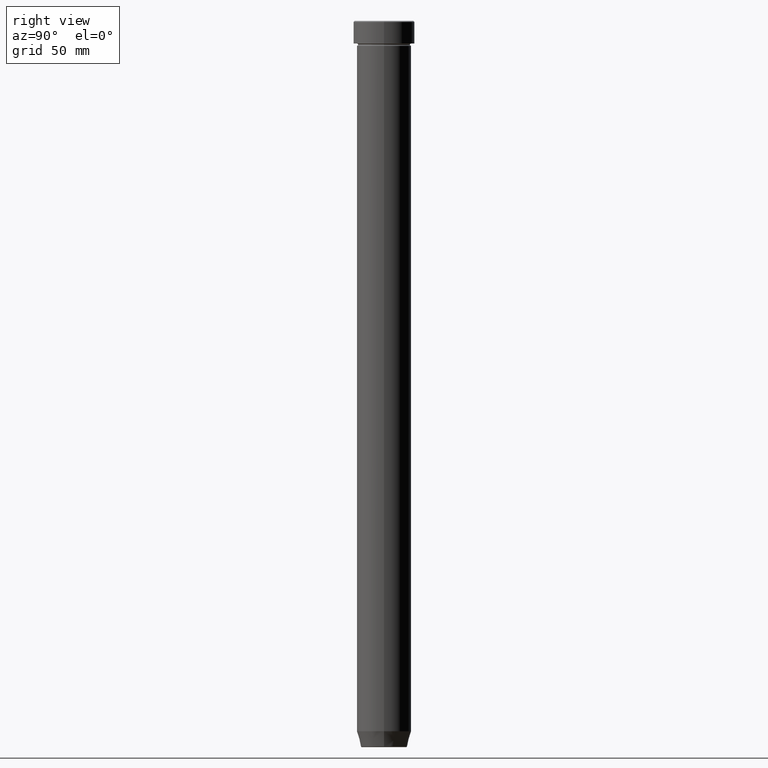
[diagram: clean part render]
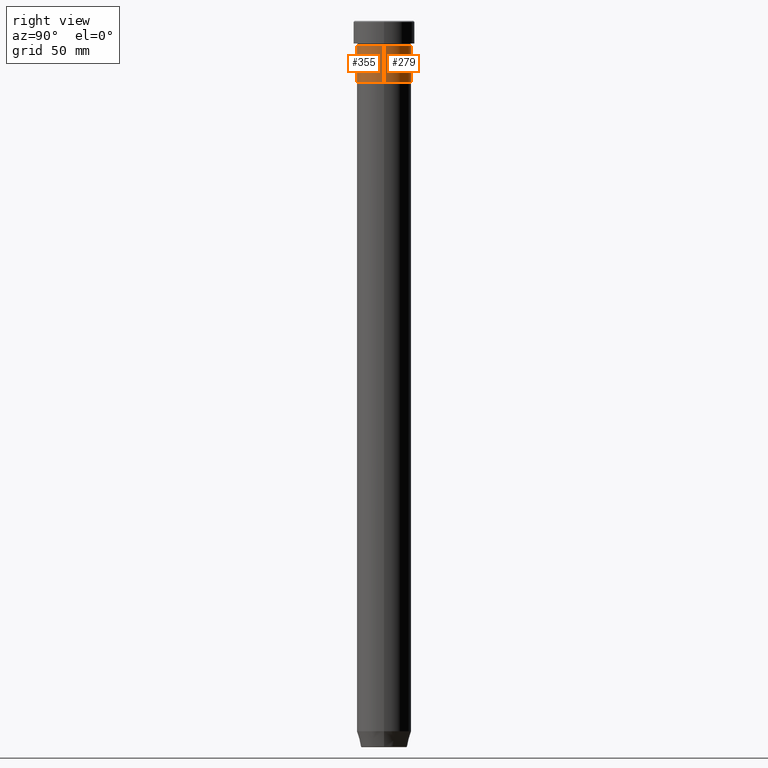
[diagram: same view with one multi-face feature highlighted, each face labeled with its STEP entity id]
A machine part, right view. The highlighted faces form ONE feature: a constant-radius fillet chain: 2 tangent blend faces with common blend radius 12 mm. The faces share edges in the B-rep.
Their STEP definitions:
[1] entity #279 (Cylinder):
#13 = CARTESIAN_POINT ( 'NONE',  ( 0.000000000000000000, 0.000000000000000000, 0.000000000000000000 ) ) ;
#16 = VERTEX_POINT ( 'NONE', #559 ) ;
#20 = CARTESIAN_POINT ( 'NONE',  ( 12.00000000000000000, 0.000000000000000000, 0.000000000000000000 ) ) ;
#43 = AXIS2_PLACEMENT_3D ( 'NONE', #426, #286, #576 ) ;
#49 = DIRECTION ( 'NONE',  ( 1.000000000000000000, 0.000000000000000000, 0.000000000000000000 ) ) ;
#63 = CYLINDRICAL_SURFACE ( 'NONE', #274, 12.00000000000000000 ) ;
#94 = VERTEX_POINT ( 'NONE', #296 ) ;
#95 = DIRECTION ( 'NONE',  ( -0.000000000000000000, -0.000000000000000000, 1.000000000000000000 ) ) ;
#101 = LINE ( 'NONE', #147, #411 ) ;
#114 = DIRECTION ( 'NONE',  ( -0.000000000000000000, -0.000000000000000000, 1.000000000000000000 ) ) ;
#119 = FACE_OUTER_BOUND ( 'NONE', #492, .T. ) ;
#136 = CIRCLE ( 'NONE', #183, 12.00000000000000000 ) ;
#147 = CARTESIAN_POINT ( 'NONE',  ( -12.00000000000000000, 1.469576158976823947E-15, 0.000000000000000000 ) ) ;
#181 = ORIENTED_EDGE ( 'NONE', *, *, #412, .F. ) ;
#183 = AXIS2_PLACEMENT_3D ( 'NONE', #336, #114, #49 ) ;
#207 = EDGE_CURVE ( 'NONE', #461, #94, #136, .T. ) ;
#225 = DIRECTION ( 'NONE',  ( -0.000000000000000000, -0.000000000000000000, 1.000000000000000000 ) ) ;
#274 = AXIS2_PLACEMENT_3D ( 'NONE', #13, #400, #527 ) ;
#279 = ADVANCED_FACE ( 'NONE', ( #119 ), #63, .T. ) ;
#286 = DIRECTION ( 'NONE',  ( -0.000000000000000000, -0.000000000000000000, 1.000000000000000000 ) ) ;
#291 = CIRCLE ( 'NONE', #43, 12.00000000000000000 ) ;
#296 = CARTESIAN_POINT ( 'NONE',  ( -12.00000000000000000, 1.469576158976823947E-15, -11.00000000000000000 ) ) ;
#336 = CARTESIAN_POINT ( 'NONE',  ( 0.000000000000000000, 0.000000000000000000, -11.00000000000000000 ) ) ;
#382 = EDGE_CURVE ( 'NONE', #530, #16, #291, .T. ) ;
#391 = VECTOR ( 'NONE', #225, 1000.000000000000000 ) ;
#393 = ORIENTED_EDGE ( 'NONE', *, *, #207, .F. ) ;
#400 = DIRECTION ( 'NONE',  ( -0.000000000000000000, -0.000000000000000000, 1.000000000000000000 ) ) ;
#411 = VECTOR ( 'NONE', #95, 1000.000000000000000 ) ;
#412 = EDGE_CURVE ( 'NONE', #530, #461, #455, .T. ) ;
#426 = CARTESIAN_POINT ( 'NONE',  ( 0.000000000000000000, 0.000000000000000000, -27.00000000000000000 ) ) ;
#451 = ORIENTED_EDGE ( 'NONE', *, *, #501, .T. ) ;
#455 = LINE ( 'NONE', #20, #391 ) ;
#461 = VERTEX_POINT ( 'NONE', #464 ) ;
#464 = CARTESIAN_POINT ( 'NONE',  ( 12.00000000000000000, 0.000000000000000000, -11.00000000000000000 ) ) ;
#484 = ORIENTED_EDGE ( 'NONE', *, *, #382, .T. ) ;
#492 = EDGE_LOOP ( 'NONE', ( #484, #451, #393, #181 ) ) ;
#501 = EDGE_CURVE ( 'NONE', #16, #94, #101, .T. ) ;
#527 = DIRECTION ( 'NONE',  ( 1.000000000000000000, 0.000000000000000000, 0.000000000000000000 ) ) ;
#530 = VERTEX_POINT ( 'NONE', #594 ) ;
#559 = CARTESIAN_POINT ( 'NONE',  ( -12.00000000000000000, 1.469576158976823947E-15, -27.00000000000000000 ) ) ;
#576 = DIRECTION ( 'NONE',  ( 1.000000000000000000, 0.000000000000000000, 0.000000000000000000 ) ) ;
#594 = CARTESIAN_POINT ( 'NONE',  ( 12.00000000000000000, 0.000000000000000000, -27.00000000000000000 ) ) ;
[2] entity #355 (Cylinder):
#16 = VERTEX_POINT ( 'NONE', #559 ) ;
#17 = CARTESIAN_POINT ( 'NONE',  ( 0.000000000000000000, 0.000000000000000000, -27.00000000000000000 ) ) ;
#20 = CARTESIAN_POINT ( 'NONE',  ( 12.00000000000000000, 0.000000000000000000, 0.000000000000000000 ) ) ;
#87 = AXIS2_PLACEMENT_3D ( 'NONE', #17, #403, #211 ) ;
#94 = VERTEX_POINT ( 'NONE', #296 ) ;
#95 = DIRECTION ( 'NONE',  ( -0.000000000000000000, -0.000000000000000000, 1.000000000000000000 ) ) ;
#101 = LINE ( 'NONE', #147, #411 ) ;
#103 = DIRECTION ( 'NONE',  ( 1.000000000000000000, 0.000000000000000000, 0.000000000000000000 ) ) ;
#147 = CARTESIAN_POINT ( 'NONE',  ( -12.00000000000000000, 1.469576158976823947E-15, 0.000000000000000000 ) ) ;
#169 = ORIENTED_EDGE ( 'NONE', *, *, #333, .T. ) ;
#208 = ORIENTED_EDGE ( 'NONE', *, *, #501, .F. ) ;
#211 = DIRECTION ( 'NONE',  ( 1.000000000000000000, 0.000000000000000000, 0.000000000000000000 ) ) ;
#225 = DIRECTION ( 'NONE',  ( -0.000000000000000000, -0.000000000000000000, 1.000000000000000000 ) ) ;
#237 = CYLINDRICAL_SURFACE ( 'NONE', #586, 12.00000000000000000 ) ;
#238 = DIRECTION ( 'NONE',  ( 1.000000000000000000, 0.000000000000000000, 0.000000000000000000 ) ) ;
#265 = AXIS2_PLACEMENT_3D ( 'NONE', #280, #352, #238 ) ;
#280 = CARTESIAN_POINT ( 'NONE',  ( 0.000000000000000000, 0.000000000000000000, -11.00000000000000000 ) ) ;
#284 = FACE_OUTER_BOUND ( 'NONE', #415, .T. ) ;
#296 = CARTESIAN_POINT ( 'NONE',  ( -12.00000000000000000, 1.469576158976823947E-15, -11.00000000000000000 ) ) ;
#333 = EDGE_CURVE ( 'NONE', #16, #530, #543, .T. ) ;
#352 = DIRECTION ( 'NONE',  ( -0.000000000000000000, -0.000000000000000000, 1.000000000000000000 ) ) ;
#355 = ADVANCED_FACE ( 'NONE', ( #284 ), #237, .T. ) ;
#379 = CARTESIAN_POINT ( 'NONE',  ( 0.000000000000000000, 0.000000000000000000, 0.000000000000000000 ) ) ;
#391 = VECTOR ( 'NONE', #225, 1000.000000000000000 ) ;
#403 = DIRECTION ( 'NONE',  ( -0.000000000000000000, -0.000000000000000000, 1.000000000000000000 ) ) ;
#411 = VECTOR ( 'NONE', #95, 1000.000000000000000 ) ;
#412 = EDGE_CURVE ( 'NONE', #530, #461, #455, .T. ) ;
#415 = EDGE_LOOP ( 'NONE', ( #208, #169, #529, #550 ) ) ;
#455 = LINE ( 'NONE', #20, #391 ) ;
#461 = VERTEX_POINT ( 'NONE', #464 ) ;
#464 = CARTESIAN_POINT ( 'NONE',  ( 12.00000000000000000, 0.000000000000000000, -11.00000000000000000 ) ) ;
#501 = EDGE_CURVE ( 'NONE', #16, #94, #101, .T. ) ;
#503 = EDGE_CURVE ( 'NONE', #94, #461, #544, .T. ) ;
#529 = ORIENTED_EDGE ( 'NONE', *, *, #412, .T. ) ;
#530 = VERTEX_POINT ( 'NONE', #594 ) ;
#543 = CIRCLE ( 'NONE', #87, 12.00000000000000000 ) ;
#544 = CIRCLE ( 'NONE', #265, 12.00000000000000000 ) ;
#550 = ORIENTED_EDGE ( 'NONE', *, *, #503, .F. ) ;
#552 = DIRECTION ( 'NONE',  ( -0.000000000000000000, -0.000000000000000000, 1.000000000000000000 ) ) ;
#559 = CARTESIAN_POINT ( 'NONE',  ( -12.00000000000000000, 1.469576158976823947E-15, -27.00000000000000000 ) ) ;
#586 = AXIS2_PLACEMENT_3D ( 'NONE', #379, #552, #103 ) ;
#594 = CARTESIAN_POINT ( 'NONE',  ( 12.00000000000000000, 0.000000000000000000, -27.00000000000000000 ) ) ;